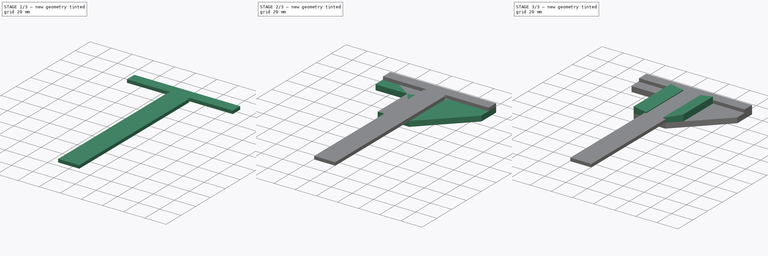
[diagram: build sequence overview — one tinted view per stage of 3, left to right]
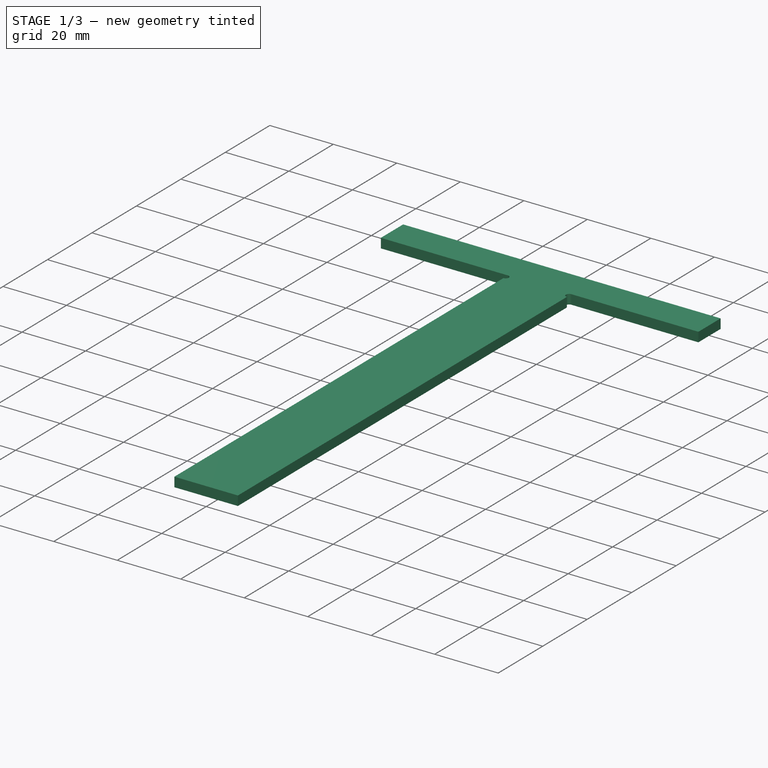
[diagram: stage 1 of 3 — iso view after this stage's code; geometry added in this stage tinted green]
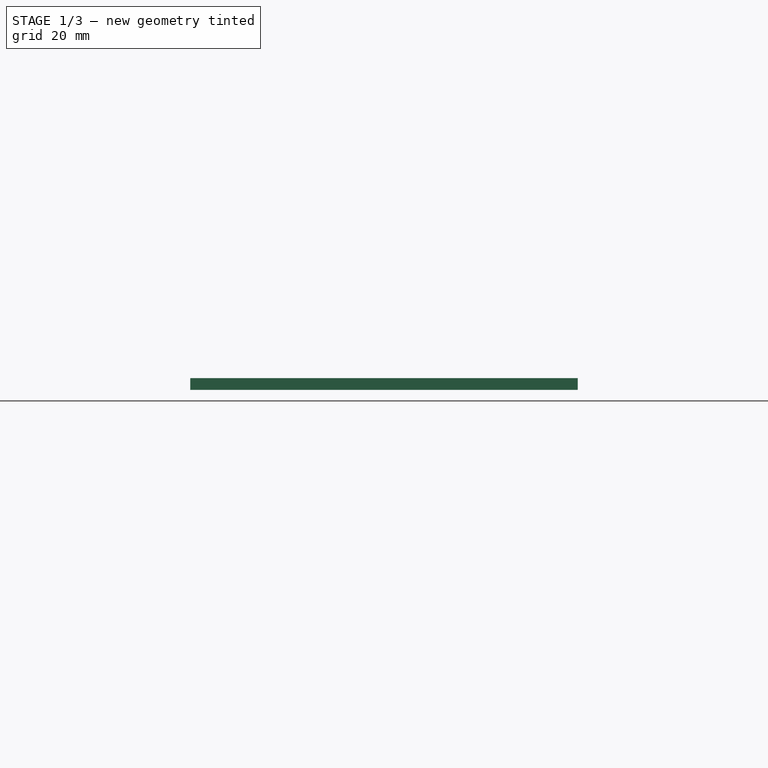
[diagram: stage 1 of 3 — front view after this stage's code; geometry added in this stage tinted green]
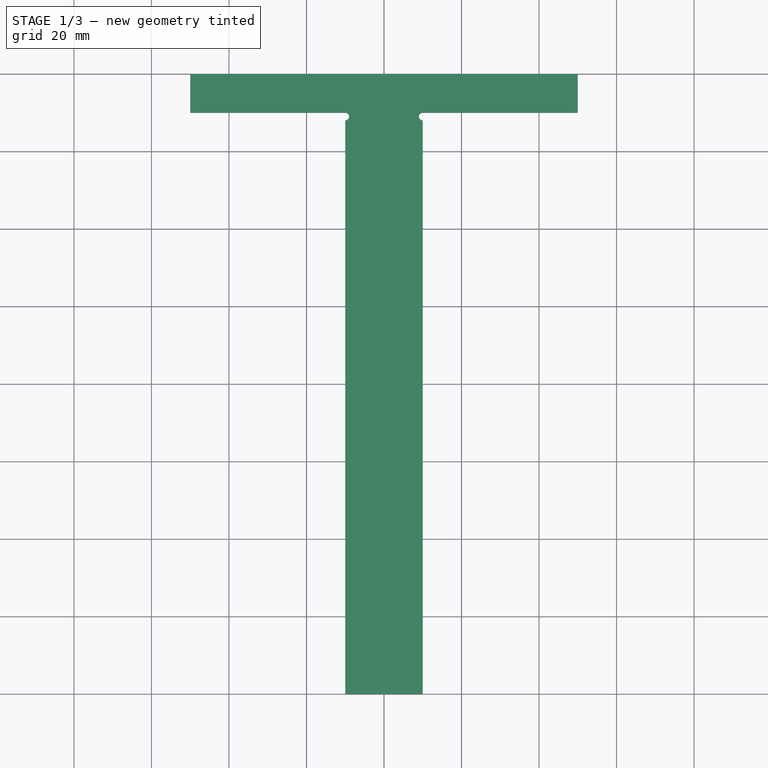
[diagram: stage 1 of 3 — top view after this stage's code; geometry added in this stage tinted green]
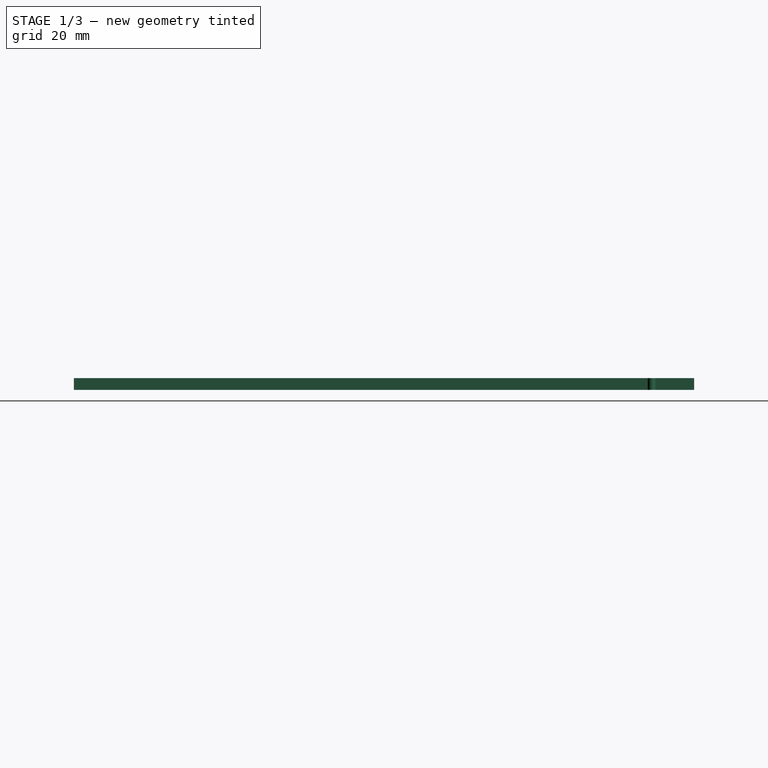
[diagram: stage 1 of 3 — right view after this stage's code; geometry added in this stage tinted green]
FCSTD DOCUMENT  (FreeCAD 0.20R29410 (Git))
Label: tee-square
License: All rights reserved
LicenseURL: http://en.wikipedia.org/wiki/All_rights_reserved
objects: Sketcher::SketchObject×5, PartDesign::Pad×3, PartDesign::Pocket×2, PartDesign::Body×2, App::Part×2, Spreadsheet::Sheet×1
note: 17 computed .brp shape members not serialized (recipe doc carries the construction recipe); baked Part::Feature solids carry a one-line shape summary decoded from their .brp

FEATURE [Spreadsheet::Sheet] Spreadsheet  label="P"
  cells = A1=tee_width; B1(tee_width)=20; A2=tee_face_width; B2(tee_face_width)=10; A3=tee_face; B3(tee_face)=100; A4=tee_face_back; B4(tee_face_back)==tee_face * 0.5 - tee_width * 0.5; A5=tee_length; B5(tee_length)=150; A6=tee_thickness; B6(tee_thickness)=3; A7=tee_corner_radius; B7(tee_corner_radius)=1; A8=base_cheek_width; B8(base_cheek_width)=10; A9=base_cheek_height; B9(base_cheek_height)=6; A10=base_cheek_epsilon; B10(base_cheek_gap)=0.2; A11=base_cheek_overhang; B11(base_cheek_overhang)=2; A12=base_cheek_tip; B12(base_cheek_tip)=0.8; A13=base_thickness; B13(base_thickness)=5
FEATURE [Sketcher::SketchObject] Sketch004  label="Tee"
  FullyConstrained = true
  MapMode = 5
  Support = -> [XY_Plane002]
  expr: Constraints[14] = <<P>>.tee_face
  expr: Constraints[16] = <<P>>.tee_face_width
  expr: Constraints[17] = <<P>>.tee_face_width
  expr: Constraints[18] = <<P>>.tee_width
  expr: Constraints[19] = <<P>>.tee_length
  sketch-geometry (8):
    g0: LineSegment StartX=10 StartY=-160 StartZ=0 EndX=10 EndY=-10 EndZ=0
    g1: LineSegment StartX=10 StartY=-10 StartZ=0 EndX=50 EndY=-10 EndZ=0
    g2: LineSegment StartX=50 StartY=-10 StartZ=0 EndX=50 EndY=0 EndZ=0
    g3: LineSegment StartX=50 StartY=0 StartZ=0 EndX=-50 EndY=0 EndZ=0
    g4: LineSegment StartX=-50 StartY=0 StartZ=0 EndX=-50 EndY=-10 EndZ=0
    g5: LineSegment StartX=-50 StartY=-10 StartZ=0 EndX=-10 EndY=-10 EndZ=0
    g6: LineSegment StartX=-10 StartY=-10 StartZ=0 EndX=-10 EndY=-160 EndZ=0
    g7: LineSegment StartX=-10 StartY=-160 StartZ=0 EndX=10 EndY=-160 EndZ=0
  constraints (22):
    c: Vertical(g0)
    c: Coincident(g0,g1)
    c: Horizontal(g1)
    c: Coincident(g1,g2)
    c: Vertical(g2)
    c: Coincident(g2,g3)
    c: Coincident(g3,g4)
    c: Vertical(g4)
    c: Coincident(g4,g5)
    c: Coincident(g5,g6)
    c: Vertical(g6)
    c: Coincident(g6,g7)
    c: Coincident(g7,g0)
    c: Symmetric(g3,g2,g-2)
    c: DistanceX(g3,g3) = 100
    c: Horizontal(g5)
    c: DistanceY(g4,g4) = 10
    c: DistanceY(g2,g2) = 10
    c: DistanceX(g7,g7) = 20
    c: DistanceY(g0,g0) = 150
    c: PointOnObject(g-1,g3)
    c: Symmetric(g6,g0,g-2)
FEATURE [PartDesign::Pad] Pad003
  Direction = (0,0,1)
  Length = 3
  Length2 = 10
  Profile = -> Sketch004
  ReferenceAxis = -> Sketch004 [N_Axis]
  Type = 0
  expr: Length = <<P>>.tee_thickness
FEATURE [PartDesign::Body] Body002  label="BaseBody"
  Group = -> [Sketch006,Pad004,Sketch008,Pad005,Sketch,Pocket]
  Origin = -> Origin004
  Tip = -> Pocket
FEATURE [App::Part] Part001  label="Base"
  Group = -> [Body002]
  Origin = -> Origin003
FEATURE [Sketcher::SketchObject] Sketch009
  FullyConstrained = true
  MapMode = 5
  Placement = pos=(0,0,3) rot=(0,0,1;0rad)
  Support = -> [Pad003]
  expr: Constraints[0] = <<P>>.tee_corner_radius * 2
  expr: Constraints[1] = <<P>>.tee_width * 0.5
  expr: Constraints[2] = <<P>>.tee_face_width + <<P>>.tee_corner_radius
  expr: Constraints[4] = 2 * <<P>>.tee_corner_radius
  sketch-geometry (2):
    g0: Circle CenterX=-10 CenterY=-11 CenterZ=0 NormalX=0 NormalY=0 NormalZ=1 AngleXU=0 Radius=1
    g1: Circle CenterX=10 CenterY=-11 CenterZ=0 NormalX=0 NormalY=0 NormalZ=1 AngleXU=0 Radius=1
  constraints (5):
    c: Diameter(g0) = 2
    c: DistanceX(g0,g-1) = 10
    c: DistanceY(g0,g-1) = 11
    c: Symmetric(g1,g0,g-2)
    c: Diameter(g1) = 2
FEATURE [PartDesign::Pocket] Pocket001
  BaseFeature = -> Pad003
  Direction = (0,0,-1)
  Length = 3
  Length2 = 5
  Profile = -> Sketch009
  ReferenceAxis = -> Sketch009 [N_Axis]
  Type = 0
  expr: Length = <<P>>.tee_thickness
FEATURE [PartDesign::Body] Body001  label="TeeBody"
  Group = -> [Sketch004,Pad003,Sketch009,Pocket001]
  Origin = -> Origin002
  Tip = -> Pocket001
FEATURE [App::Part] Part  label="TeePart"
  Group = -> [Body001]
  Origin = -> Origin001
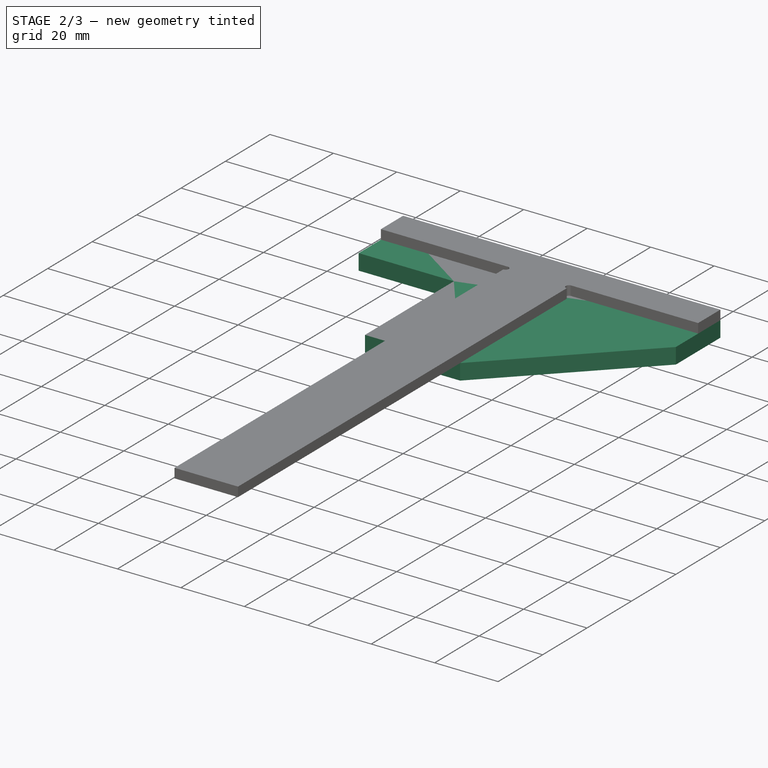
[diagram: stage 2 of 3 — iso view after this stage's code; geometry added in this stage tinted green]
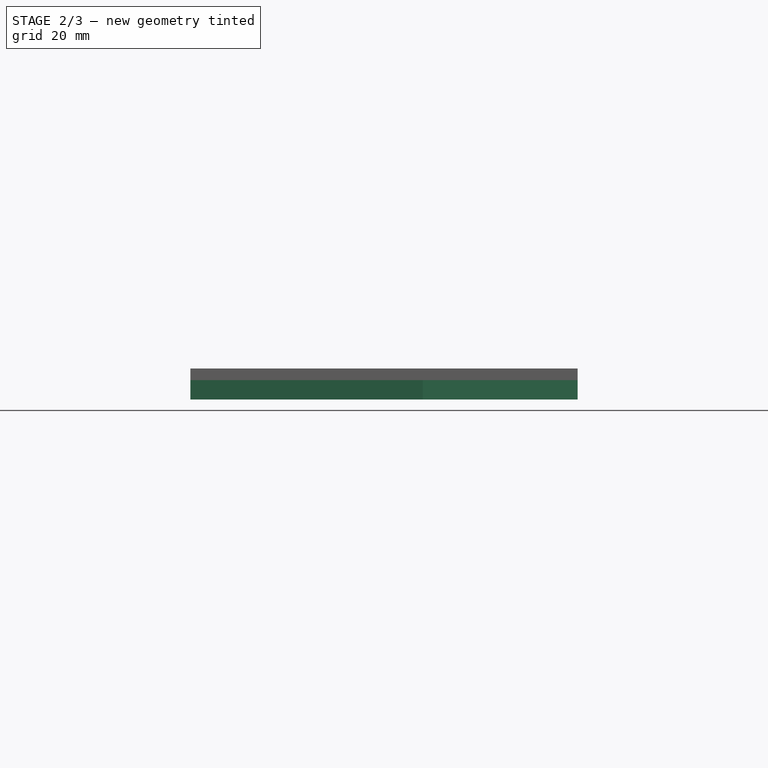
[diagram: stage 2 of 3 — front view after this stage's code; geometry added in this stage tinted green]
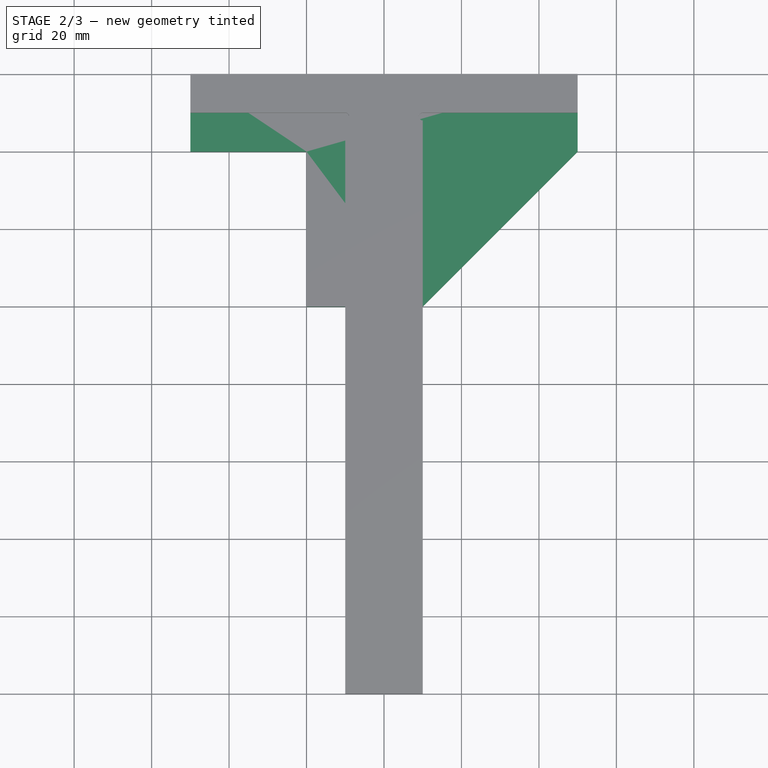
[diagram: stage 2 of 3 — top view after this stage's code; geometry added in this stage tinted green]
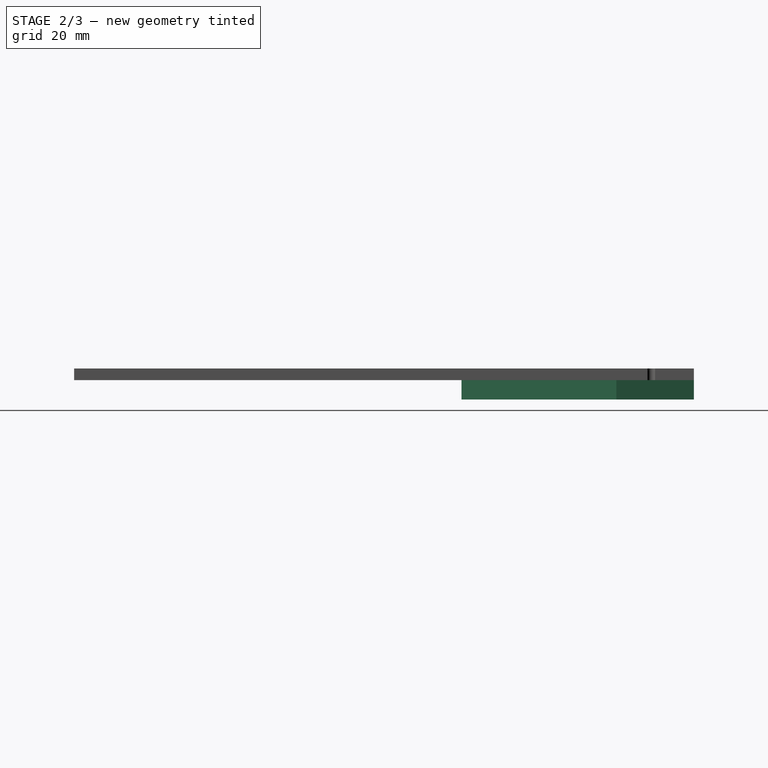
[diagram: stage 2 of 3 — right view after this stage's code; geometry added in this stage tinted green]
FEATURE [Sketcher::SketchObject] Sketch006  label="base001"
  FullyConstrained = true
  MapMode = 5
  Support = -> [XY_Plane004]
  expr: Constraints[12] = <<P>>.tee_face_width * 2
  expr: Constraints[14] = <<P>>.tee_face_width + <<P>>.tee_width - <<P>>.base_cheek_width
  expr: Constraints[15] = <<P>>.tee_face_width + <<P>>.tee_width - 2 * <<P>>.tee_face_width + <<P>>.tee_face_back - <<P>>.base_cheek_width
  expr: Constraints[16] = <<P>>.tee_face
  expr: Constraints[18] = <<P>>.tee_face * 0.5 - <<P>>.tee_width * 0.5 - <<P>>.base_cheek_width
  expr: Constraints[19] = <<P>>.tee_width + <<P>>.base_cheek_width
  sketch-geometry (7):
    g0: LineSegment StartX=-50 StartY=0 StartZ=0 EndX=50 EndY=0 EndZ=0
    g1: LineSegment StartX=50 StartY=0 StartZ=0 EndX=50 EndY=-20 EndZ=0
    g2: LineSegment StartX=50 StartY=-20 StartZ=0 EndX=10 EndY=-60 EndZ=0
    g3: LineSegment StartX=10 StartY=-60 StartZ=0 EndX=-20 EndY=-60 EndZ=0
    g4: LineSegment StartX=-20 StartY=-60 StartZ=0 EndX=-20 EndY=-20 EndZ=0
    g5: LineSegment StartX=-20 StartY=-20 StartZ=0 EndX=-50 EndY=-20 EndZ=0
    g6: LineSegment StartX=-50 StartY=-20 StartZ=0 EndX=-50 EndY=0 EndZ=0
  constraints (20):
    c: Coincident(g0,g1)
    c: Vertical(g1)
    c: Coincident(g1,g2)
    c: Coincident(g2,g3)
    c: Coincident(g3,g4)
    c: Vertical(g4)
    c: Coincident(g4,g5)
    c: Horizontal(g5)
    c: Coincident(g5,g6)
    c: Coincident(g6,g0)
    c: Vertical(g6)
    c: Symmetric(g0,g0,g-2)
    c: DistanceY(g6,g6) = 20
    c: PointOnObject(g-1,g0)
    c: DistanceY(g1,g1) = 20
    c: DistanceY(g4,g4) = 40
    c: DistanceX(g0,g0) = 100
    c: Horizontal(g3)
    c: DistanceX(g5,g5) = 30
    c: DistanceX(g3,g3) = 30
FEATURE [PartDesign::Pad] Pad004  label="BasePad"
  Direction = (0,0,1)
  Length = 5
  Length2 = 10
  Profile = -> Sketch006
  ReferenceAxis = -> Sketch006 [N_Axis]
  Reversed = true
  Type = 0
  expr: Length = <<P>>.base_thickness
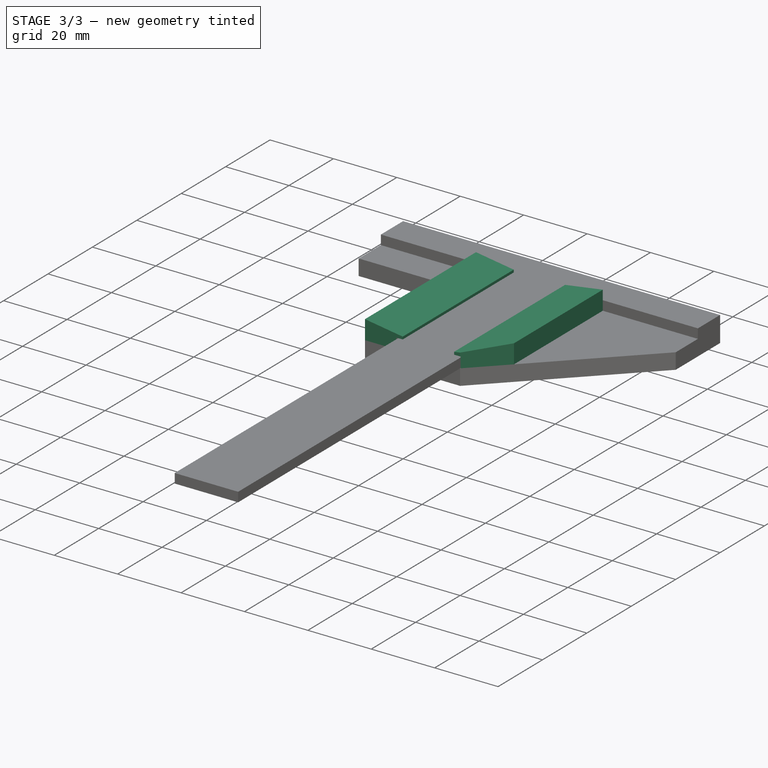
[diagram: stage 3 of 3 — iso view after this stage's code; geometry added in this stage tinted green]
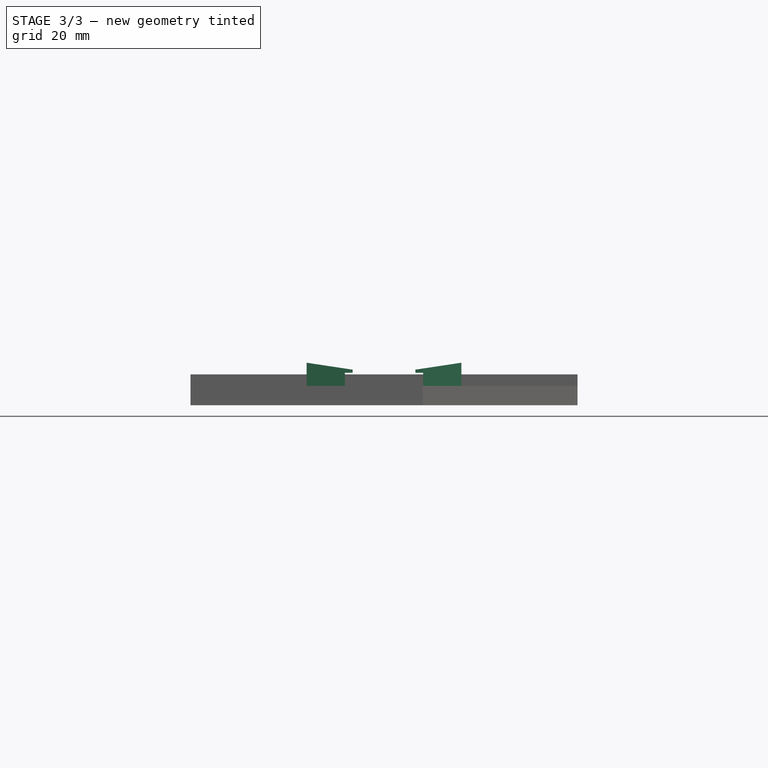
[diagram: stage 3 of 3 — front view after this stage's code; geometry added in this stage tinted green]
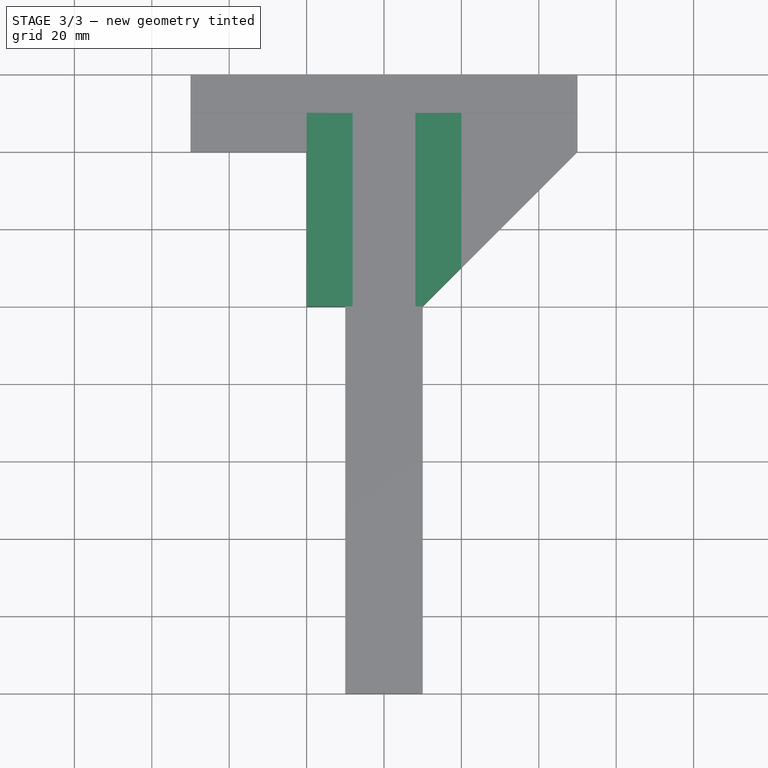
[diagram: stage 3 of 3 — top view after this stage's code; geometry added in this stage tinted green]
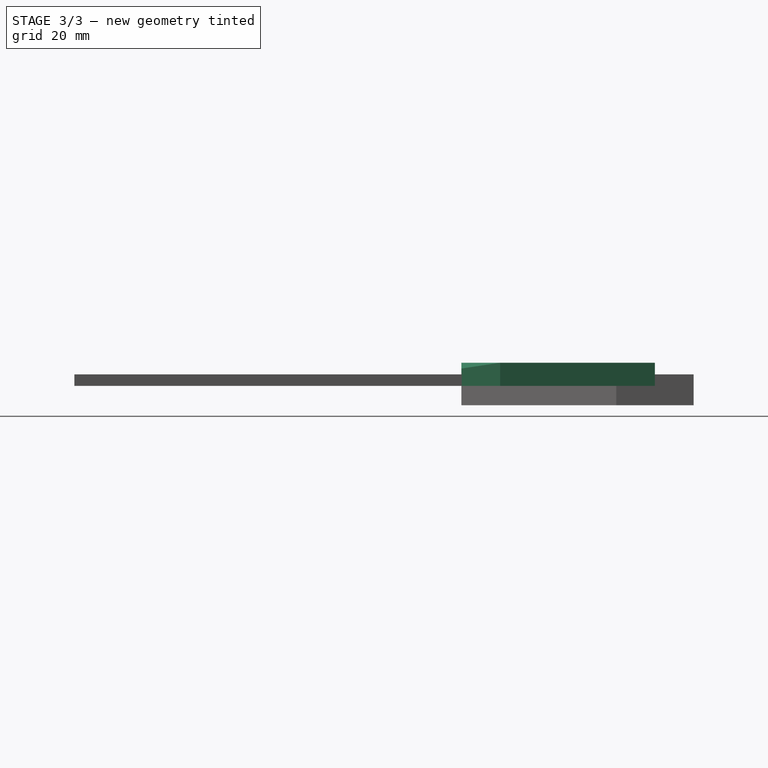
[diagram: stage 3 of 3 — right view after this stage's code; geometry added in this stage tinted green]
FEATURE [Sketcher::SketchObject] Sketch008  label="base002"
  FullyConstrained = true
  MapMode = 5
  Support = -> [XY_Plane004]
  expr: Constraints[10] = <<P>>.tee_width + <<P>>.base_cheek_width
  expr: Constraints[23] = <<P>>.base_cheek_width * 2 + <<P>>.tee_width
  expr: Constraints[7] = <<P>>.tee_face_width
  expr: Constraints[8] = <<P>>.tee_face_width + <<P>>.tee_width - <<P>>.tee_face_width + <<P>>.tee_face_back - <<P>>.base_cheek_width
  sketch-geometry (10):
    g0: LineSegment StartX=-20 StartY=-10 StartZ=0 EndX=20 EndY=-10 EndZ=0
    g1: LineSegment StartX=20 StartY=-10 StartZ=0 EndX=20 EndY=-50 EndZ=0
    g2: LineSegment StartX=10 StartY=-60 StartZ=0 EndX=-20 EndY=-60 EndZ=0
    g3: LineSegment StartX=-20 StartY=-60 StartZ=0 EndX=-20 EndY=-10 EndZ=0
    g4: LineSegment StartX=-20 StartY=-60 StartZ=0 EndX=10 EndY=-60 EndZ=0
    g5: LineSegment StartX=10 StartY=-60 StartZ=0 EndX=20 EndY=-60 EndZ=0
    g6: LineSegment StartX=20 StartY=-60 StartZ=0 EndX=20 EndY=-50 EndZ=0
    g7: LineSegment StartX=20 StartY=-50 StartZ=0 EndX=10 EndY=-50 EndZ=0
    g8: LineSegment StartX=10 StartY=-50 StartZ=0 EndX=10 EndY=-60 EndZ=0
    g9: LineSegment StartX=10 StartY=-60 StartZ=0 EndX=20 EndY=-50 EndZ=0
  constraints (26):
    c: Coincident(g0,g1)
    c: Coincident(g2,g3)
    c: Coincident(g3,g0)
    c: Horizontal(g2)
    c: Vertical(g1)
    c: Vertical(g3)
    c: Symmetric(g0,g0,g-2)
    c: DistanceY(g0,g-1) = 10
    c: DistanceY(g3,g3) = 50
    c: Coincident(g4,g2)
    c: DistanceX(g4,g4) = 30
    c: Coincident(g5,g6)
    c: Coincident(g6,g7)
    c: Coincident(g7,g8)
    c: Coincident(g8,g5)
    c: Horizontal(g5)
    c: Horizontal(g7)
    c: Vertical(g6)
    c: Vertical(g8)
    c: Coincident(g5,g4)
    c: Equal(g7,g8)
    c: Coincident(g9,g4)
    c: Coincident(g6,g9)
    c: DistanceX(g2,g9) = 40
    c: Coincident(g1,g6)
    c: Coincident(g2,g9)
FEATURE [PartDesign::Pad] Pad005  label="CheekPad"
  BaseFeature = -> Pad004
  Direction = (0,0,1)
  Length = 6
  Length2 = 10
  Profile = -> Sketch008
  ReferenceAxis = -> Sketch008 [N_Axis]
  Type = 0
  expr: Length = <<P>>.base_cheek_height
FEATURE [Sketcher::SketchObject] Sketch
  FullyConstrained = true
  MapMode = 5
  Placement = pos=(0,-60,0) rot=(1,0,0;1.5708rad)
  Support = -> [Pad005]
  expr: Constraints[12] = <<P>>.base_cheek_overhang
  expr: Constraints[18] = <<P>>.base_cheek_overhang
  expr: Constraints[19] = <<P>>.base_cheek_tip
  expr: Constraints[20] = <<P>>.base_cheek_tip
  expr: Constraints[23] = <<P>>.base_cheek_height
  expr: Constraints[6] = <<P>>.tee_width + <<P>>.base_cheek_gap
  expr: Constraints[7] = <<P>>.tee_thickness + <<P>>.base_cheek_gap * 2
  sketch-geometry (13):
    g0: LineSegment StartX=10.1 StartY=3.4 StartZ=0 EndX=10.1 EndY=0 EndZ=0
    g1: LineSegment StartX=10.1 StartY=0 StartZ=0 EndX=-10.1 EndY=0 EndZ=0
    g2: LineSegment StartX=-10.1 StartY=0 StartZ=0 EndX=-10.1 EndY=3.4 EndZ=0
    g3: LineSegment StartX=10.1 StartY=3.4 StartZ=0 EndX=8.1 EndY=3.4 EndZ=0
    g4: LineSegment StartX=8.1 StartY=3.4 StartZ=0 EndX=8.1 EndY=4.2 EndZ=0
    g5: LineSegment StartX=-10.1 StartY=3.4 StartZ=0 EndX=-8.1 EndY=3.4 EndZ=0
    g6: LineSegment StartX=-8.1 StartY=3.4 StartZ=0 EndX=-8.1 EndY=4.2 EndZ=0
    g7: LineSegment StartX=20 StartY=6 StartZ=0 EndX=-20 EndY=6 EndZ=0
    g8: LineSegment StartX=-8.1 StartY=4.2 StartZ=0 EndX=-20 EndY=6 EndZ=0
    g9: LineSegment StartX=-20 StartY=6 StartZ=0 EndX=-20 EndY=8 EndZ=0
    g10: LineSegment StartX=-20 StartY=8 StartZ=0 EndX=20 EndY=8 EndZ=0
    g11: LineSegment StartX=20 StartY=8 StartZ=0 EndX=20 EndY=6 EndZ=0
    g12: LineSegment StartX=20 StartY=6 StartZ=0 EndX=8.1 EndY=4.2 EndZ=0
  constraints (36):
    c: Coincident(g0,g1)
    c: Coincident(g1,g2)
    c: Horizontal(g1)
    c: Vertical(g0)
    c: Vertical(g2)
    c: Symmetric(g2,g0,g-2)
    c: DistanceX(g1,g1) = 20.2
    c: DistanceY(g0,g0) = 3.4
    c: PointOnObject(g1,g-1)
    c: Coincident(g4,g3)
    c: Vertical(g4)
    c: Horizontal(g3)
    c: DistanceX(g3,g3) = 2
    c: Coincident(g0,g3)
    c: Coincident(g5,g2)
    c: Horizontal(g5)
    c: Coincident(g6,g5)
    c: Vertical(g6)
    c: DistanceX(g5,g5) = 2
    c: DistanceY(g6,g6) = 0.8
    c: DistanceY(g4,g4) = 0.8
    c: DistanceX(g7,g7) = 40
    c: Symmetric(g7,g7,g-2)
    c: DistanceY(g-1,g7) = 6
    c: Coincident(g8,g7)
    c: Coincident(g8,g9)
    c: Vertical(g9)
    c: Coincident(g9,g10)
    c: Horizontal(g10)
    c: Coincident(g10,g11)
    c: Coincident(g11,g7)
    c: Vertical(g11)
    c: Coincident(g11,g12)
    c: Coincident(g12,g4)
    c: DistanceY(g9,g9) = 2
    c: Coincident(g6,g8)
FEATURE [PartDesign::Pocket] Pocket
  BaseFeature = -> Pad005
  Direction = (0,1,-2e-16)
  Length = 50
  Length2 = 5
  Profile = -> Sketch
  ReferenceAxis = -> Sketch [N_Axis]
  Type = 0
  expr: Length = <<P>>.tee_face_width + <<P>>.tee_width - <<P>>.tee_face_width + <<P>>.tee_face_back - <<P>>.base_cheek_width
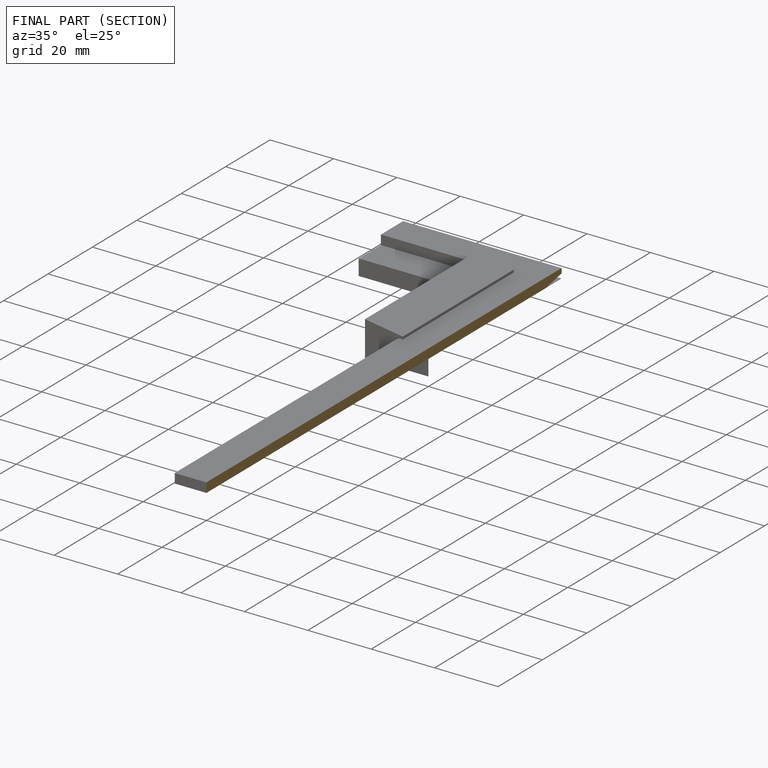
[diagram: finished part — half-section view (interior)]
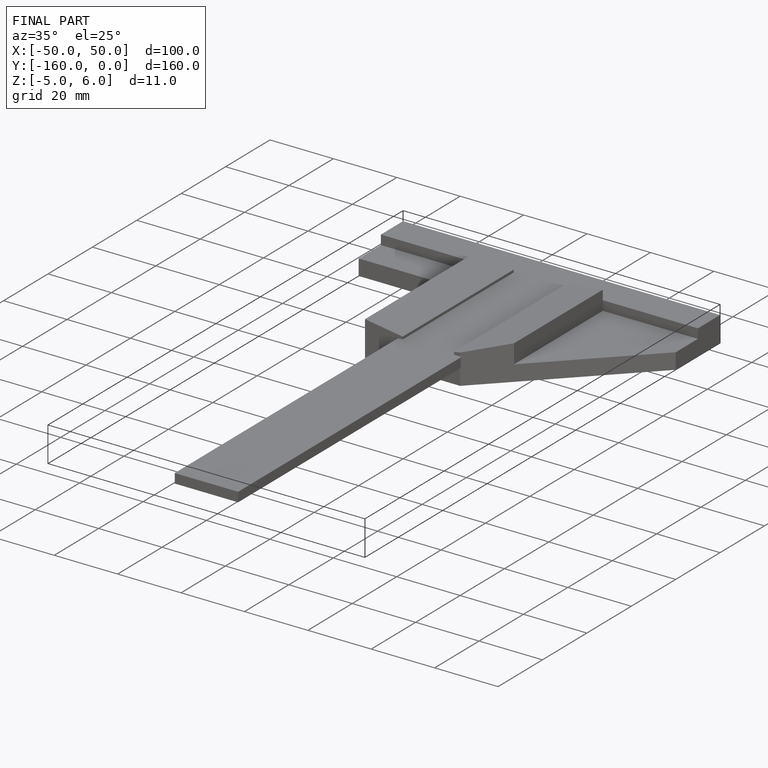
[diagram: finished part — iso view with bounding-box wireframe]
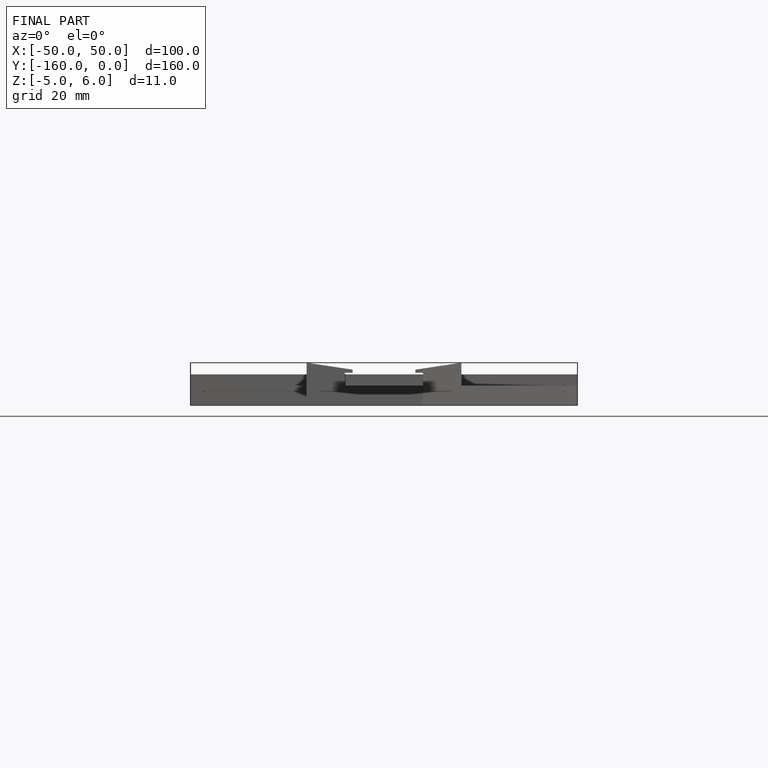
[diagram: finished part — front view with bounding-box wireframe]
